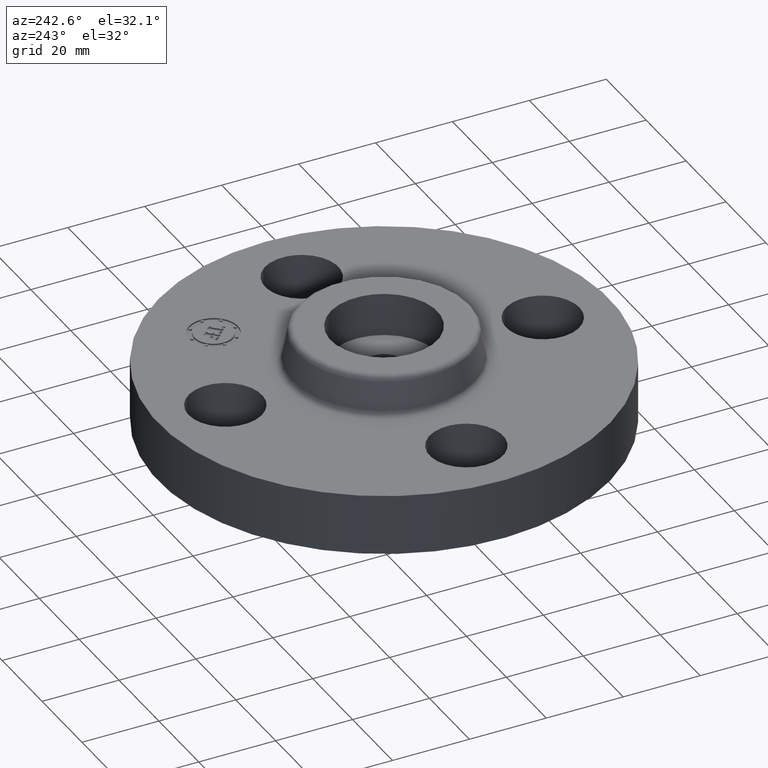
[diagram: clean part render]
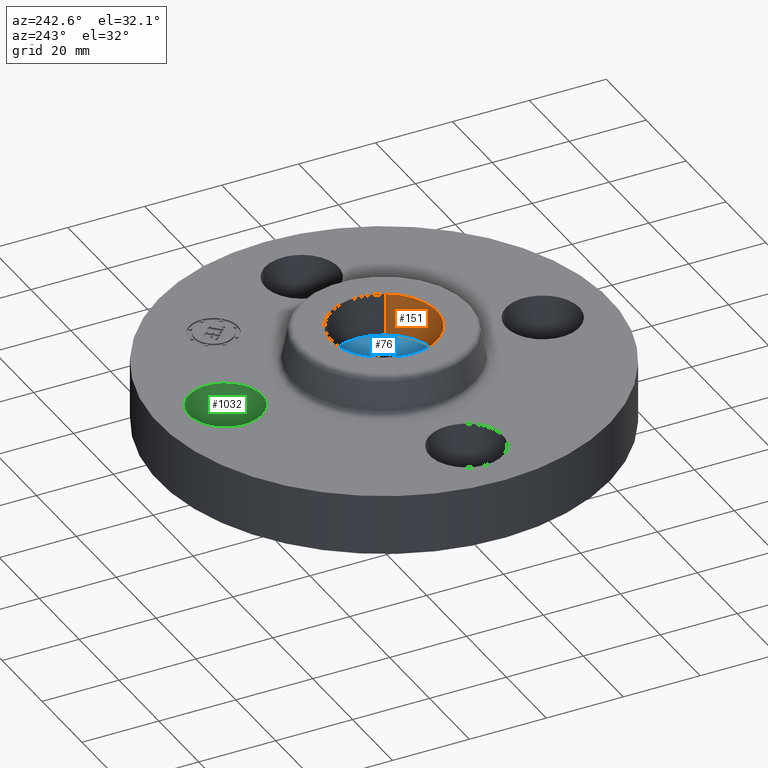
[diagram: same view with three faces highlighted in distinct colors, each labeled with its STEP entity id]
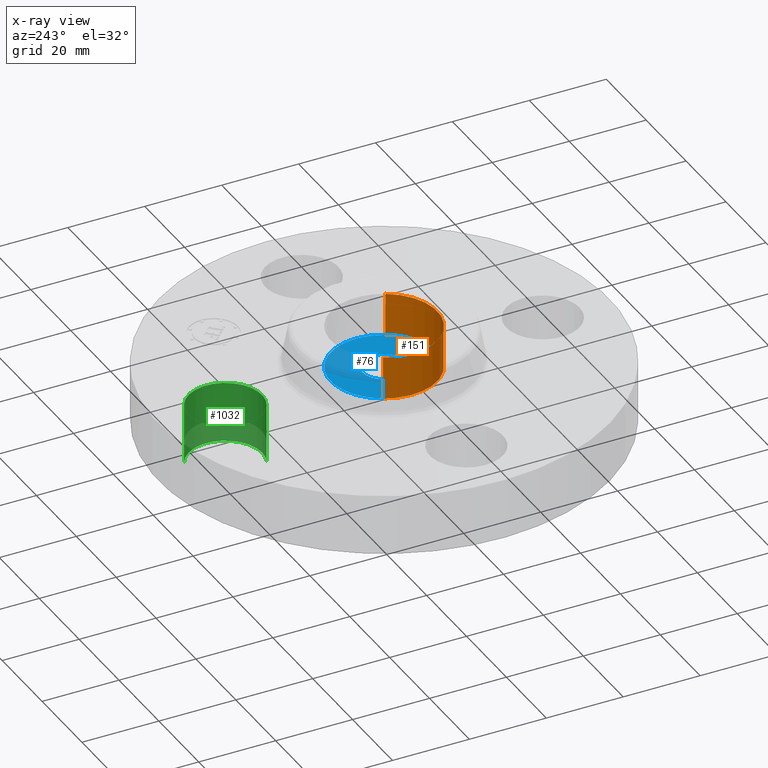
[diagram: x-ray of the same camera — body ghosted, the three highlighted faces saturated]
A machine part, auxiliary view with three faces highlighted in distinct colors.
The next image is the same camera in x-ray (body ghosted, the three faces saturated) — at least one of them is partly hidden behind the body in this view.
Their STEP definitions:

[orange] entity #151 — the highlighted cylindrical surface (partial cylindrical patch) has radius 13.843 mm, axis along (0, 0, -1).
#51=AXIS2_PLACEMENT_3D('Circle Axis2P3D',#49,#50,$) ;
#138=AXIS2_PLACEMENT_3D('Cylinder Axis2P3D',#135,#136,#137) ;
#142=AXIS2_PLACEMENT_3D('Circle Axis2P3D',#140,#141,$) ;
#44=CARTESIAN_POINT('Vertex',(-0.47828249626,0.261286918558,0.560000000002)) ;
#46=CARTESIAN_POINT('Vertex',(0.47828249626,-0.261286918558,0.560000000002)) ;
#49=CARTESIAN_POINT('Axis2P3D Location',(1.22386790117E-016,1.04902962957E-016,0.560000000002)) ;
#106=CARTESIAN_POINT('Vertex',(-0.47828249626,0.261286918521,1.)) ;
#108=CARTESIAN_POINT('Vertex',(0.47828249626,-0.261286918521,1.)) ;
#111=CARTESIAN_POINT('Line Origine',(-0.478282496232,0.26128691854,0.780000000001)) ;
#116=CARTESIAN_POINT('Line Origine',(0.478282496232,-0.26128691854,0.780000000001)) ;
#135=CARTESIAN_POINT('Axis2P3D Location',(1.39870617276E-016,1.04902962957E-016,0.99606299213)) ;
#140=CARTESIAN_POINT('Axis2P3D Location',(1.39870617276E-016,1.04902962957E-016,0.999999999989)) ;
#50=DIRECTION('Axis2P3D Direction',(0.,0.,-0.0393700787402)) ;
#112=DIRECTION('Vector Direction',(0.,0.,-0.0393700787402)) ;
#117=DIRECTION('Vector Direction',(0.,0.,-0.0393700787402)) ;
#136=DIRECTION('Axis2P3D Direction',(0.,0.,-0.0393700787402)) ;
#137=DIRECTION('Axis2P3D XDirection',(0.0345504945626,-0.0188750212049,0.)) ;
#141=DIRECTION('Axis2P3D Direction',(0.,0.,-0.0393700787402)) ;
#113=VECTOR('Line Direction',#112,0.0393700787402) ;
#118=VECTOR('Line Direction',#117,0.0393700787402) ;
#146=ORIENTED_EDGE('',*,*,#144,.F.) ;
#147=ORIENTED_EDGE('',*,*,#120,.F.) ;
#148=ORIENTED_EDGE('',*,*,#53,.T.) ;
#149=ORIENTED_EDGE('',*,*,#115,.T.) ;
#151=ADVANCED_FACE('PartBody',(#150),#139,.F.) ;
#52=CIRCLE('generated circle',#51,0.545000000035) ;
#143=CIRCLE('generated circle',#142,0.545000000002) ;
#139=CYLINDRICAL_SURFACE('generated cylinder',#138,0.545000000002) ;
#53=EDGE_CURVE('',#47,#45,#52,.T.) ;
#115=EDGE_CURVE('',#45,#107,#114,.F.) ;
#120=EDGE_CURVE('',#47,#109,#119,.F.) ;
#144=EDGE_CURVE('',#109,#107,#143,.T.) ;
#145=EDGE_LOOP('',(#146,#147,#148,#149)) ;
#150=FACE_OUTER_BOUND('',#145,.T.) ;
#114=LINE('Line',#111,#113) ;
#119=LINE('Line',#116,#118) ;
#45=VERTEX_POINT('',#44) ;
#47=VERTEX_POINT('',#46) ;
#107=VERTEX_POINT('',#106) ;
#109=VERTEX_POINT('',#108) ;

[blue] entity #76 — the highlighted planar face has unit normal (0, 0, -1).
#38=AXIS2_PLACEMENT_3D('Plane Axis2P3D',#35,#36,#37) ;
#42=AXIS2_PLACEMENT_3D('Circle Axis2P3D',#40,#41,$) ;
#51=AXIS2_PLACEMENT_3D('Circle Axis2P3D',#49,#50,$) ;
#60=AXIS2_PLACEMENT_3D('Circle Axis2P3D',#58,#59,$) ;
#69=AXIS2_PLACEMENT_3D('Circle Axis2P3D',#67,#68,$) ;
#35=CARTESIAN_POINT('Axis2P3D Location',(1.39870617276E-016,1.04902962957E-016,0.560000000002)) ;
#40=CARTESIAN_POINT('Axis2P3D Location',(1.57354444435E-016,1.04902962957E-016,0.560000000002)) ;
#44=CARTESIAN_POINT('Vertex',(-0.47828249626,0.261286918558,0.560000000002)) ;
#46=CARTESIAN_POINT('Vertex',(0.47828249626,-0.261286918558,0.560000000002)) ;
#49=CARTESIAN_POINT('Axis2P3D Location',(1.22386790117E-016,1.04902962957E-016,0.560000000002)) ;
#58=CARTESIAN_POINT('Axis2P3D Location',(1.22386790117E-016,9.61610493773E-017,0.560000000002)) ;
#62=CARTESIAN_POINT('Vertex',(-0.104035341848,-0.19043541594,0.560000000002)) ;
#64=CARTESIAN_POINT('Vertex',(0.104035341848,0.19043541594,0.560000000002)) ;
#67=CARTESIAN_POINT('Axis2P3D Location',(1.57354444435E-016,1.13644876537E-016,0.560000000002)) ;
#36=DIRECTION('Axis2P3D Direction',(0.,0.,-0.0393700787402)) ;
#37=DIRECTION('Axis2P3D XDirection',(0.0393700787402,0.,0.)) ;
#41=DIRECTION('Axis2P3D Direction',(0.,0.,-0.0393700787402)) ;
#50=DIRECTION('Axis2P3D Direction',(0.,0.,-0.0393700787402)) ;
#59=DIRECTION('Axis2P3D Direction',(0.,0.,-0.0393700787402)) ;
#68=DIRECTION('Axis2P3D Direction',(0.,0.,-0.0393700787402)) ;
#55=ORIENTED_EDGE('',*,*,#48,.F.) ;
#56=ORIENTED_EDGE('',*,*,#53,.F.) ;
#73=ORIENTED_EDGE('',*,*,#66,.T.) ;
#74=ORIENTED_EDGE('',*,*,#71,.T.) ;
#75=FACE_BOUND('',#72,.T.) ;
#76=ADVANCED_FACE('PartBody',(#57,#75),#39,.F.) ;
#43=CIRCLE('generated circle',#42,0.545000000035) ;
#52=CIRCLE('generated circle',#51,0.545000000035) ;
#61=CIRCLE('generated circle',#60,0.216999999995) ;
#70=CIRCLE('generated circle',#69,0.216999999995) ;
#48=EDGE_CURVE('',#45,#47,#43,.T.) ;
#53=EDGE_CURVE('',#47,#45,#52,.T.) ;
#66=EDGE_CURVE('',#63,#65,#61,.T.) ;
#71=EDGE_CURVE('',#65,#63,#70,.T.) ;
#54=EDGE_LOOP('',(#55,#56)) ;
#72=EDGE_LOOP('',(#73,#74)) ;
#57=FACE_OUTER_BOUND('',#54,.T.) ;
#39=PLANE('',#38) ;
#45=VERTEX_POINT('',#44) ;
#47=VERTEX_POINT('',#46) ;
#63=VERTEX_POINT('',#62) ;
#65=VERTEX_POINT('',#64) ;

[green] entity #1032 — the highlighted cylindrical surface (partial cylindrical patch) has radius 9.525 mm, axis along (-0, 0, -1).
#593=AXIS2_PLACEMENT_3D('Circle Axis2P3D',#591,#592,$) ;
#1007=AXIS2_PLACEMENT_3D('Cylinder Axis2P3D',#1004,#1005,#1006) ;
#586=CARTESIAN_POINT('Vertex',(-0.179784576973,1.29590653927,0.)) ;
#588=CARTESIAN_POINT('Vertex',(0.179784576973,1.95409346073,0.)) ;
#591=CARTESIAN_POINT('Axis2P3D Location',(-4.36653687836E-011,1.62500000002,0.)) ;
#971=CARTESIAN_POINT('Line Origine',(-0.179784576977,1.2959065393,0.309999999994)) ;
#975=CARTESIAN_POINT('Vertex',(-0.179784576973,1.2959065393,0.620000000002)) ;
#978=CARTESIAN_POINT('Line Origine',(0.179784576977,1.95409346072,0.309999999994)) ;
#982=CARTESIAN_POINT('Vertex',(0.179784576977,1.95409346072,0.619999999987)) ;
#1004=CARTESIAN_POINT('Axis2P3D Location',(-2.98507657293E-016,1.62500000001,0.616062992128)) ;
#1010=CARTESIAN_POINT('Control Point',(0.179784576977,1.95409346072,0.620000000002)) ;
#1011=CARTESIAN_POINT('Control Point',(0.231478456903,1.92585296541,0.620000000001)) ;
#1012=CARTESIAN_POINT('Control Point',(0.27762732854,1.88746240051,0.620000000001)) ;
#1013=CARTESIAN_POINT('Control Point',(0.315564920645,1.84036533168,0.62)) ;
#1014=CARTESIAN_POINT('Control Point',(0.370929207243,1.73383359426,0.619999999998)) ;
#1015=CARTESIAN_POINT('Control Point',(0.38190110985,1.61427677655,0.619999999997)) ;
#1016=CARTESIAN_POINT('Control Point',(0.375424381748,1.55414819117,0.619999999996)) ;
#1017=CARTESIAN_POINT('Control Point',(0.339243530298,1.43967041474,0.619999999995)) ;
#1018=CARTESIAN_POINT('Control Point',(0.262462400496,1.34737267147,0.619999999993)) ;
#1019=CARTESIAN_POINT('Control Point',(0.215365331668,1.30943507936,0.619999999992)) ;
#1020=CARTESIAN_POINT('Control Point',(0.108833594252,1.25407079277,0.619999999991)) ;
#1021=CARTESIAN_POINT('Control Point',(-0.0107232234562,1.24309889016,0.61999999999)) ;
#1022=CARTESIAN_POINT('Control Point',(-0.0708518088378,1.24957561826,0.619999999989)) ;
#1023=CARTESIAN_POINT('Control Point',(-0.128090697051,1.26766604399,0.619999999988)) ;
#1024=CARTESIAN_POINT('Control Point',(-0.179784576977,1.2959065393,0.619999999987)) ;
#592=DIRECTION('Axis2P3D Direction',(0.,0.,-0.0393700787402)) ;
#972=DIRECTION('Vector Direction',(0.,0.,-0.0393700787402)) ;
#979=DIRECTION('Vector Direction',(0.,0.,-0.0393700787402)) ;
#1005=DIRECTION('Axis2P3D Direction',(-0.,0.,-0.0393700787402)) ;
#1006=DIRECTION('Axis2P3D XDirection',(0.0188750212049,0.0345504945626,0.)) ;
#973=VECTOR('Line Direction',#972,0.0393700787402) ;
#980=VECTOR('Line Direction',#979,0.0393700787402) ;
#1027=ORIENTED_EDGE('',*,*,#984,.F.) ;
#1028=ORIENTED_EDGE('',*,*,#595,.T.) ;
#1029=ORIENTED_EDGE('',*,*,#977,.T.) ;
#1030=ORIENTED_EDGE('',*,*,#1025,.F.) ;
#1032=ADVANCED_FACE('PartBody',(#1031),#1008,.F.) ;
#1009=B_SPLINE_CURVE_WITH_KNOTS('',5,(#1010,#1011,#1012,#1013,#1014,#1015,#1016,#1017,#1018,#1019,#1020,#1021,#1022,#1023,#1024),.UNSPECIFIED.,.F.,.U.,(6,3,3,3,6),(-14.9618350128,-7.48091750638,0.,7.48091750638,14.9618350128),.UNSPECIFIED.) ;
#594=CIRCLE('generated circle',#593,0.375000000021) ;
#1008=CYLINDRICAL_SURFACE('generated cylinder',#1007,0.375000000001) ;
#595=EDGE_CURVE('',#589,#587,#594,.T.) ;
#977=EDGE_CURVE('',#587,#976,#974,.F.) ;
#984=EDGE_CURVE('',#589,#983,#981,.F.) ;
#1025=EDGE_CURVE('',#983,#976,#1009,.T.) ;
#1026=EDGE_LOOP('',(#1027,#1028,#1029,#1030)) ;
#1031=FACE_OUTER_BOUND('',#1026,.T.) ;
#974=LINE('Line',#971,#973) ;
#981=LINE('Line',#978,#980) ;
#587=VERTEX_POINT('',#586) ;
#589=VERTEX_POINT('',#588) ;
#976=VERTEX_POINT('',#975) ;
#983=VERTEX_POINT('',#982) ;